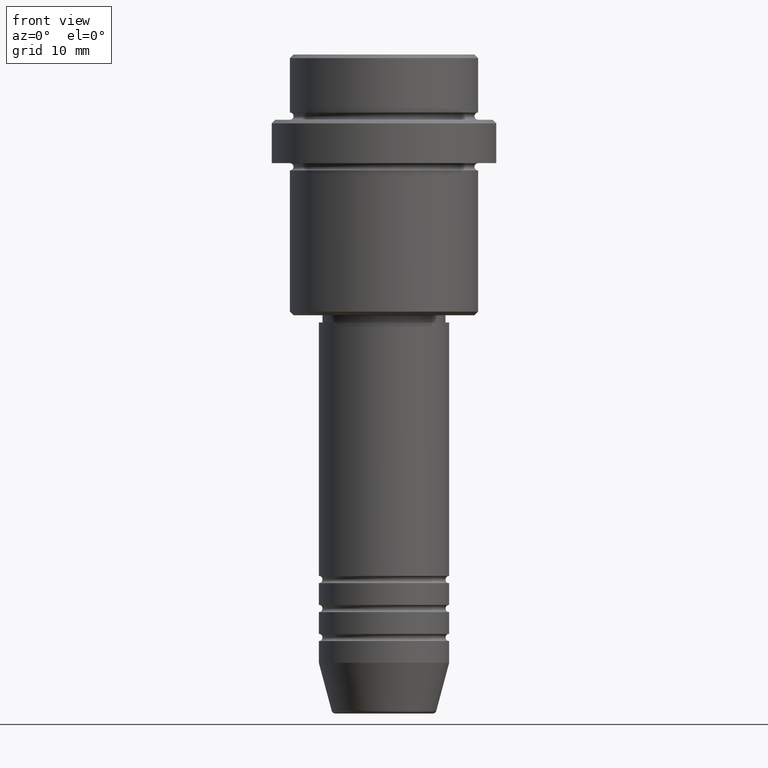
[diagram: clean part render]
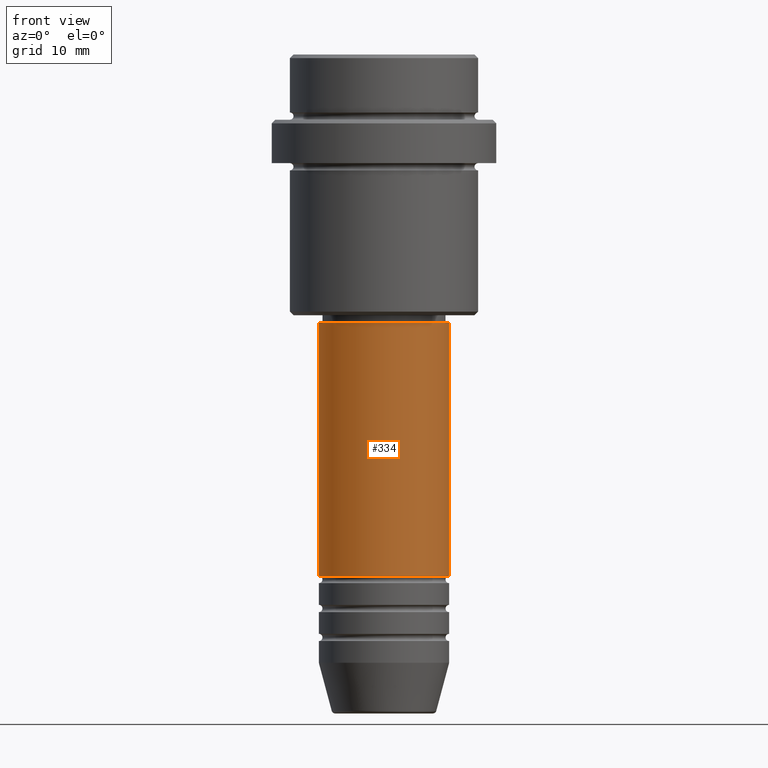
[diagram: same view with one face highlighted and labeled with its STEP entity id]
A machine part, front view. The second image highlights one B-rep face of the part: STEP entity #334.
In plain terms, the highlighted cylindrical surface (partial cylindrical patch) has radius 9 mm, axis along (-0, -0, 1).
Its self-contained STEP definition (entity closure, byte-faithful):
#38 = EDGE_CURVE ( 'NONE', #104, #1091, #363, .T. ) ;
#82 = EDGE_CURVE ( 'NONE', #468, #1091, #256, .T. ) ;
#87 = CARTESIAN_POINT ( 'NONE',  ( -9.000000000000001776, 1.102182119232617911E-15, 0.000000000000000000 ) ) ;
#104 = VERTEX_POINT ( 'NONE', #361 ) ;
#174 = DIRECTION ( 'NONE',  ( 1.000000000000000000, 0.000000000000000000, 0.000000000000000000 ) ) ;
#222 = EDGE_CURVE ( 'NONE', #1315, #468, #960, .T. ) ;
#248 = VECTOR ( 'NONE', #1108, 1000.000000000000000 ) ;
#256 = LINE ( 'NONE', #472, #248 ) ;
#288 = FACE_OUTER_BOUND ( 'NONE', #633, .T. ) ;
#328 = ORIENTED_EDGE ( 'NONE', *, *, #222, .T. ) ;
#334 = ADVANCED_FACE ( 'NONE', ( #288 ), #508, .T. ) ;
#361 = CARTESIAN_POINT ( 'NONE',  ( -9.000000000000001776, 1.102182119232617911E-15, -37.00000000000000000 ) ) ;
#363 = CIRCLE ( 'NONE', #797, 9.000000000000001776 ) ;
#396 = EDGE_CURVE ( 'NONE', #1315, #104, #533, .T. ) ;
#468 = VERTEX_POINT ( 'NONE', #1300 ) ;
#472 = CARTESIAN_POINT ( 'NONE',  ( 9.000000000000001776, 0.000000000000000000, 0.000000000000000000 ) ) ;
#508 = CYLINDRICAL_SURFACE ( 'NONE', #820, 9.000000000000001776 ) ;
#533 = LINE ( 'NONE', #87, #867 ) ;
#548 = AXIS2_PLACEMENT_3D ( 'NONE', #1172, #1372, #174 ) ;
#632 = DIRECTION ( 'NONE',  ( -0.000000000000000000, -0.000000000000000000, 1.000000000000000000 ) ) ;
#633 = EDGE_LOOP ( 'NONE', ( #1068, #328, #1106, #896 ) ) ;
#797 = AXIS2_PLACEMENT_3D ( 'NONE', #1323, #1320, #974 ) ;
#820 = AXIS2_PLACEMENT_3D ( 'NONE', #938, #1387, #1157 ) ;
#867 = VECTOR ( 'NONE', #632, 1000.000000000000000 ) ;
#896 = ORIENTED_EDGE ( 'NONE', *, *, #38, .F. ) ;
#938 = CARTESIAN_POINT ( 'NONE',  ( 0.000000000000000000, 0.000000000000000000, 0.000000000000000000 ) ) ;
#960 = CIRCLE ( 'NONE', #548, 9.000000000000000000 ) ;
#974 = DIRECTION ( 'NONE',  ( 1.000000000000000000, 0.000000000000000000, 0.000000000000000000 ) ) ;
#1042 = CARTESIAN_POINT ( 'NONE',  ( 9.000000000000001776, 0.000000000000000000, -37.00000000000000000 ) ) ;
#1068 = ORIENTED_EDGE ( 'NONE', *, *, #396, .F. ) ;
#1086 = CARTESIAN_POINT ( 'NONE',  ( -9.000000000000000000, 1.102182119232617714E-15, -71.99999999999987210 ) ) ;
#1091 = VERTEX_POINT ( 'NONE', #1042 ) ;
#1106 = ORIENTED_EDGE ( 'NONE', *, *, #82, .T. ) ;
#1108 = DIRECTION ( 'NONE',  ( -0.000000000000000000, -0.000000000000000000, 1.000000000000000000 ) ) ;
#1157 = DIRECTION ( 'NONE',  ( 1.000000000000000000, 0.000000000000000000, 0.000000000000000000 ) ) ;
#1172 = CARTESIAN_POINT ( 'NONE',  ( 0.000000000000000000, 0.000000000000000000, -71.99999999999987210 ) ) ;
#1300 = CARTESIAN_POINT ( 'NONE',  ( 9.000000000000000000, 0.000000000000000000, -71.99999999999987210 ) ) ;
#1315 = VERTEX_POINT ( 'NONE', #1086 ) ;
#1320 = DIRECTION ( 'NONE',  ( -0.000000000000000000, -0.000000000000000000, 1.000000000000000000 ) ) ;
#1323 = CARTESIAN_POINT ( 'NONE',  ( 0.000000000000000000, 0.000000000000000000, -37.00000000000000000 ) ) ;
#1372 = DIRECTION ( 'NONE',  ( -0.000000000000000000, -0.000000000000000000, 1.000000000000000000 ) ) ;
#1387 = DIRECTION ( 'NONE',  ( -0.000000000000000000, -0.000000000000000000, 1.000000000000000000 ) ) ;